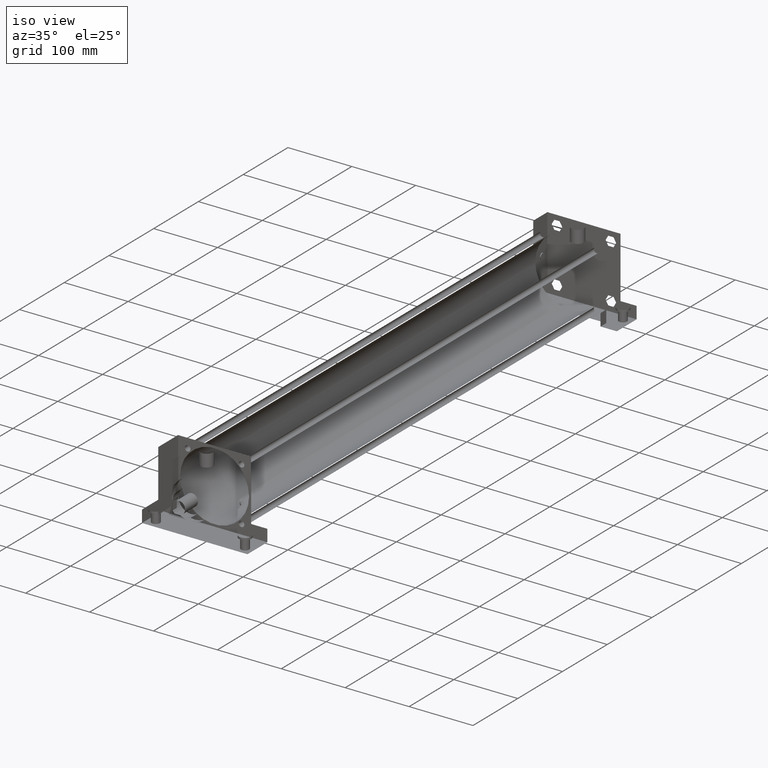
[diagram: clean part render]
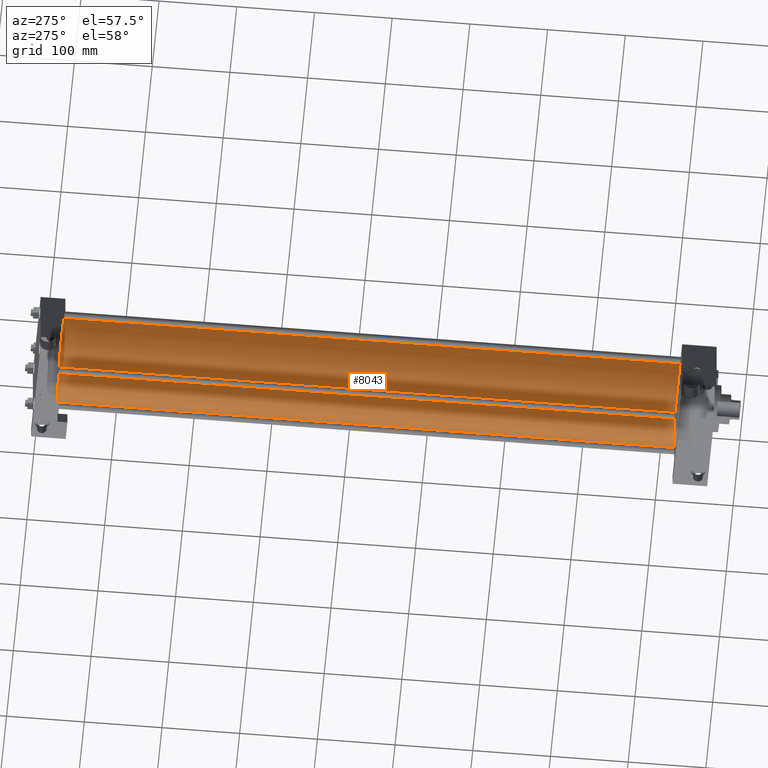
[diagram: tour spotlight — one face highlighted and labeled with its STEP entity id]
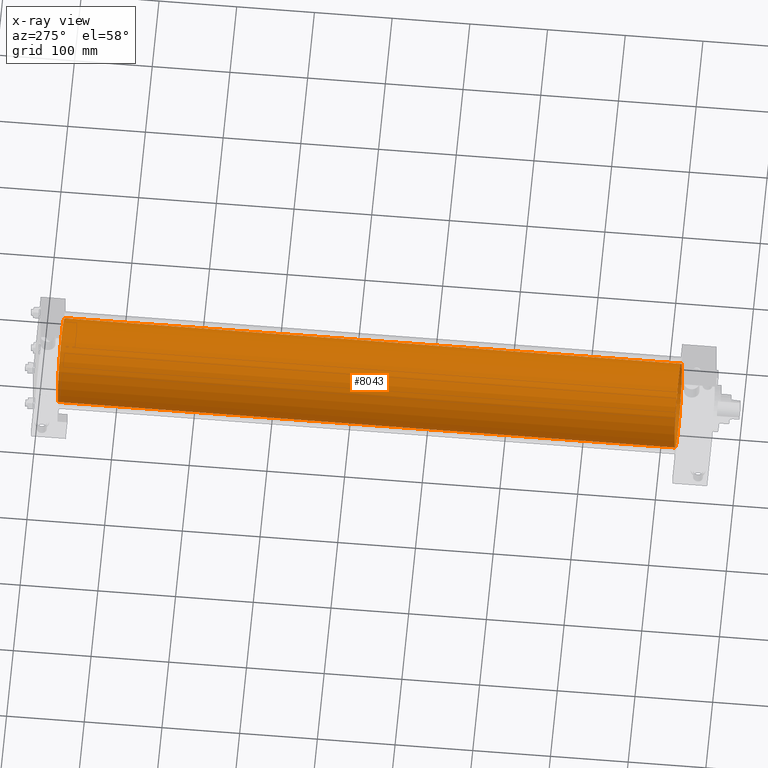
[diagram: x-ray of the same camera — body ghosted, this tour face saturated]
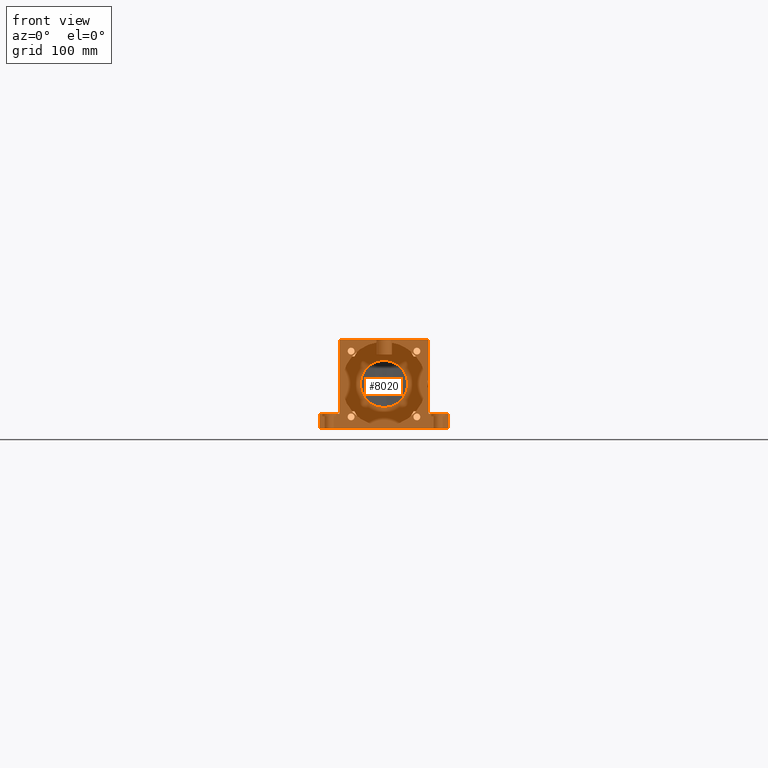
[diagram: tour spotlight — one face highlighted and labeled with its STEP entity id]
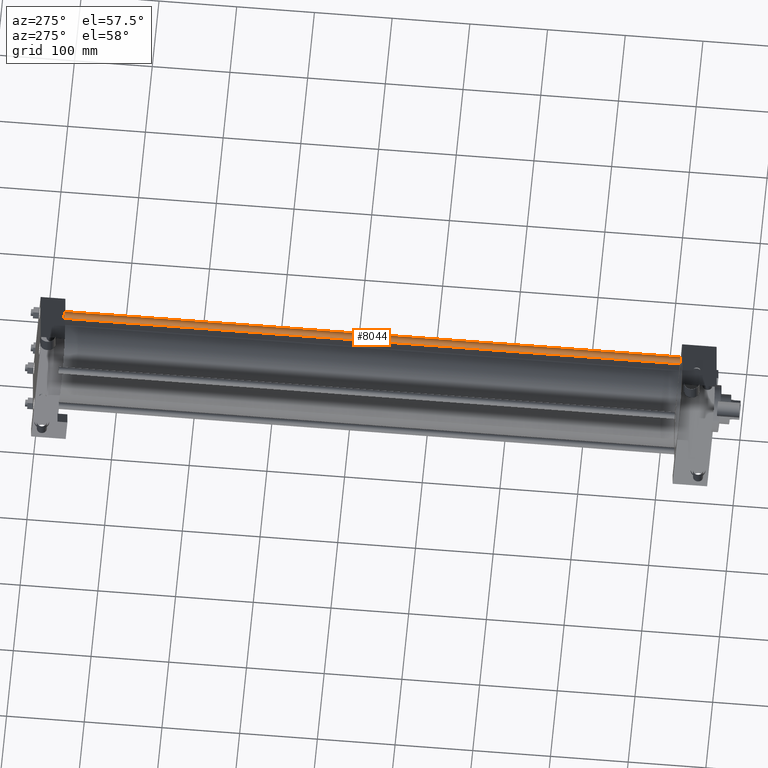
[diagram: tour spotlight — one face highlighted and labeled with its STEP entity id]
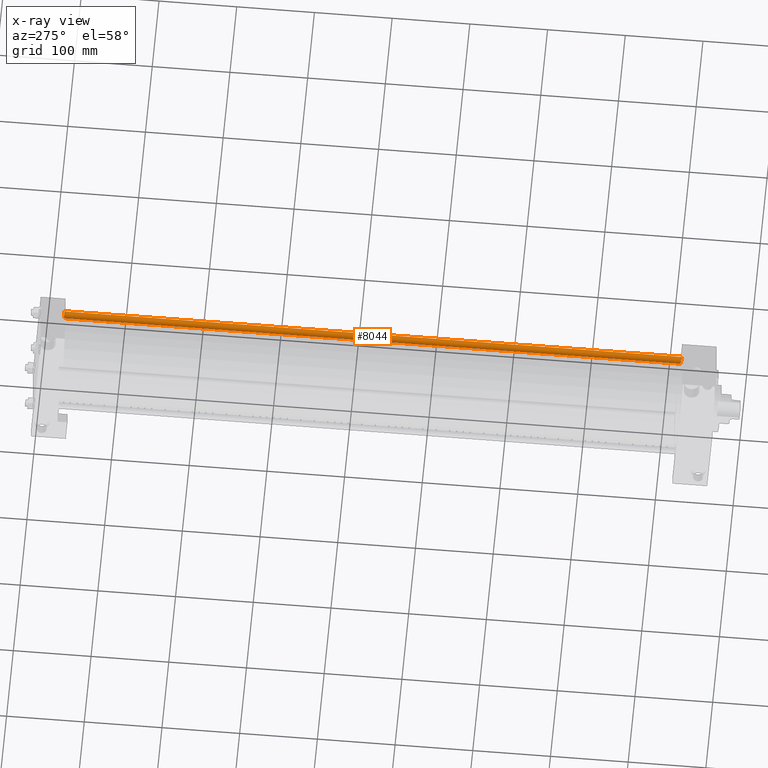
[diagram: x-ray of the same camera — body ghosted, this tour face saturated]
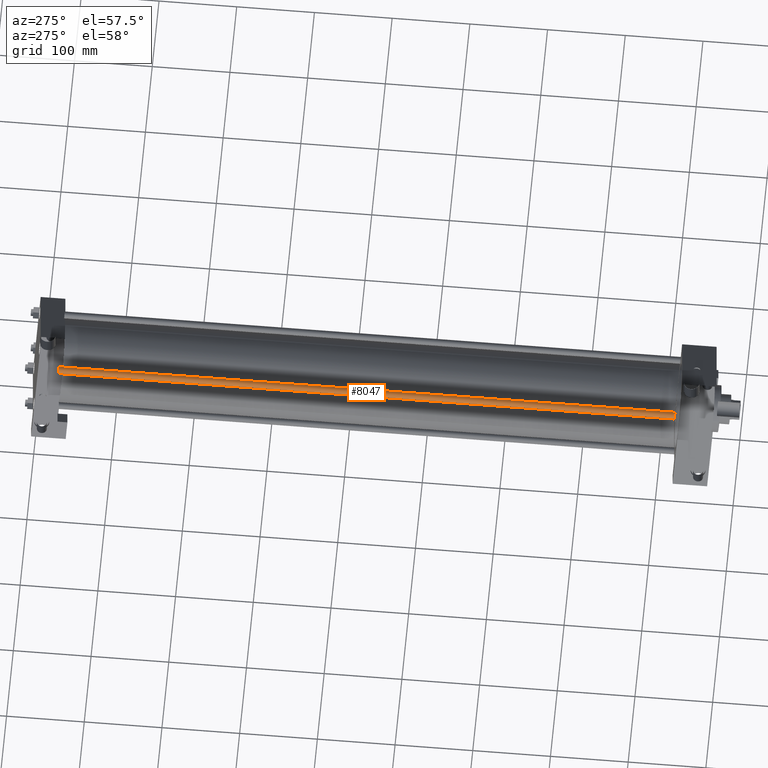
[diagram: tour spotlight — one face highlighted and labeled with its STEP entity id]
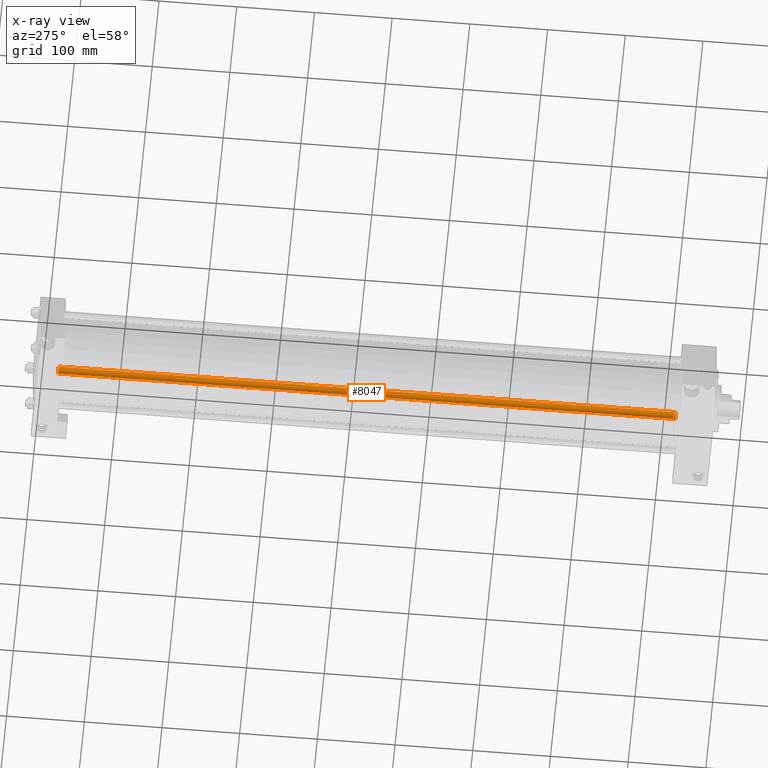
[diagram: x-ray of the same camera — body ghosted, this tour face saturated]
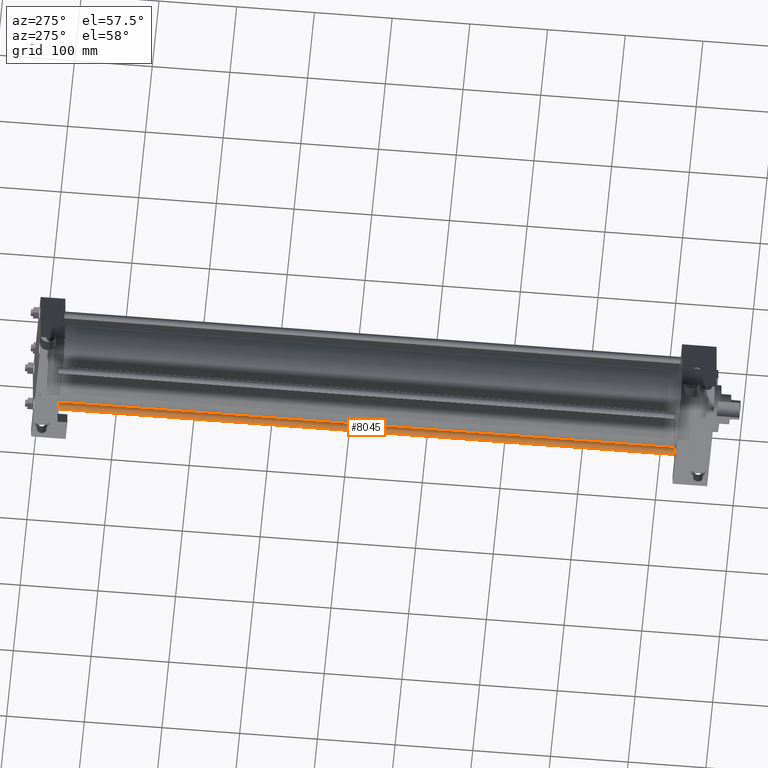
[diagram: tour spotlight — one face highlighted and labeled with its STEP entity id]
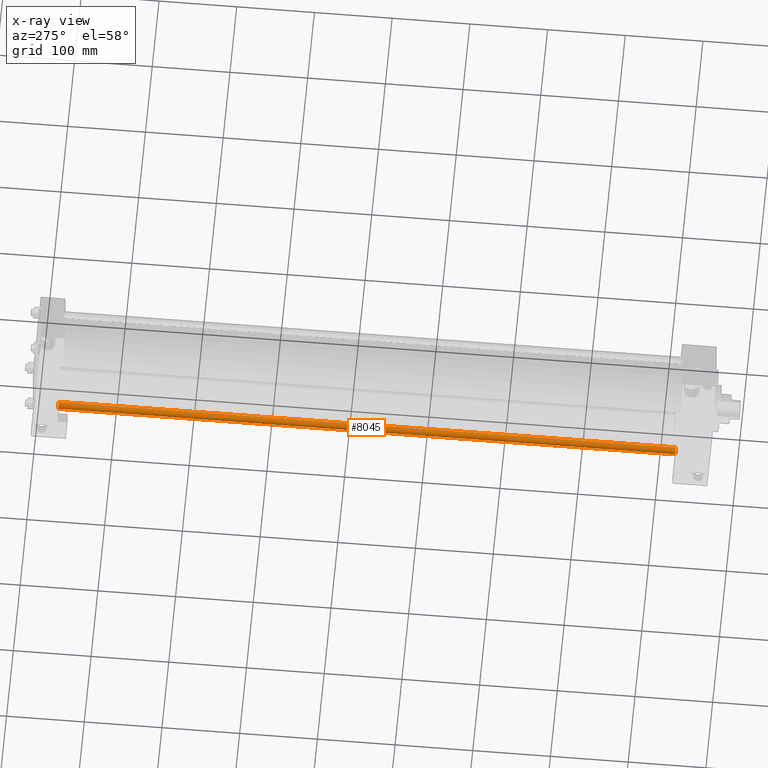
[diagram: x-ray of the same camera — body ghosted, this tour face saturated]
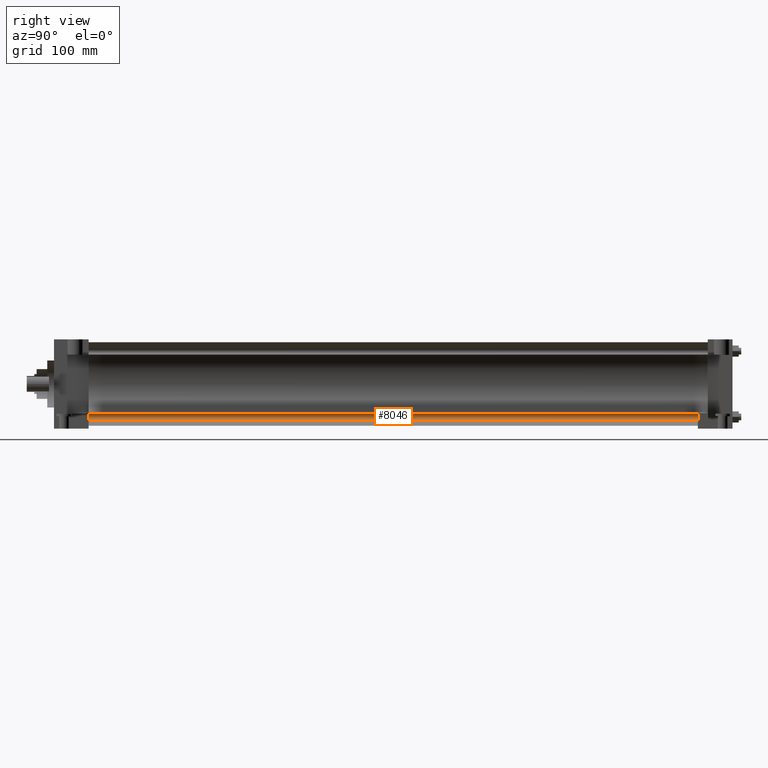
[diagram: tour spotlight — one face highlighted and labeled with its STEP entity id]
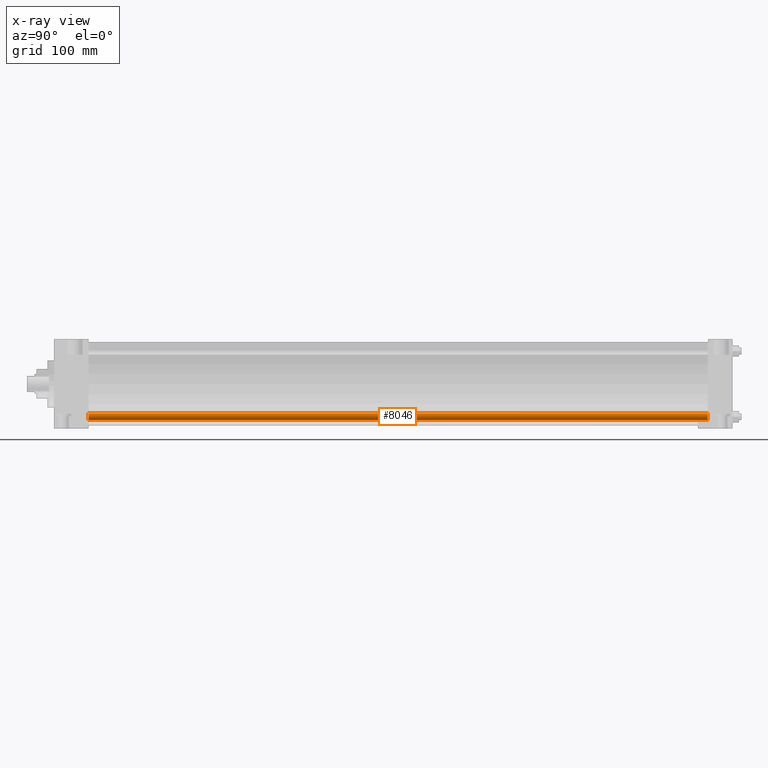
[diagram: x-ray of the same camera — body ghosted, this tour face saturated]
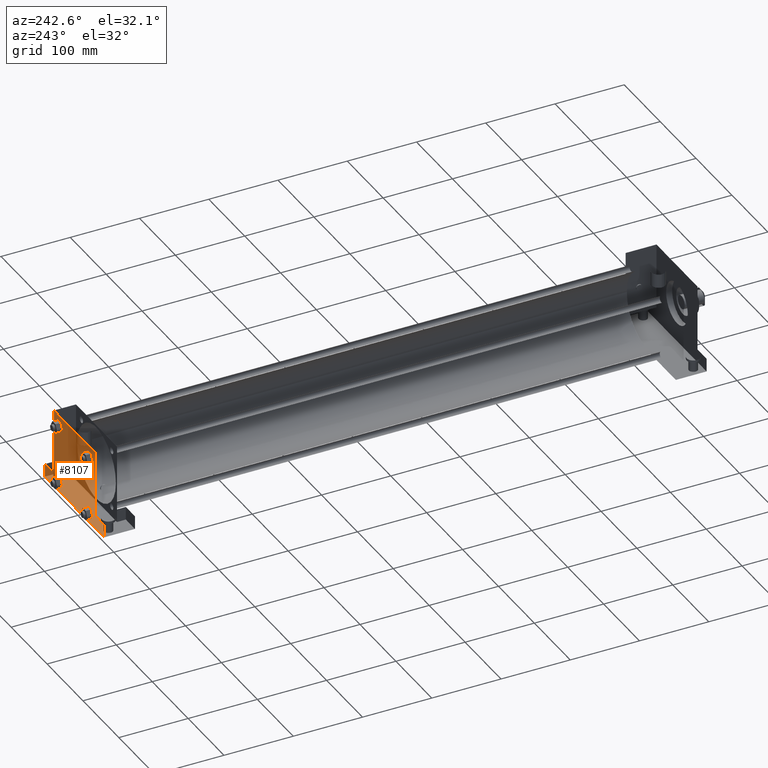
[diagram: tour spotlight — one face highlighted and labeled with its STEP entity id]
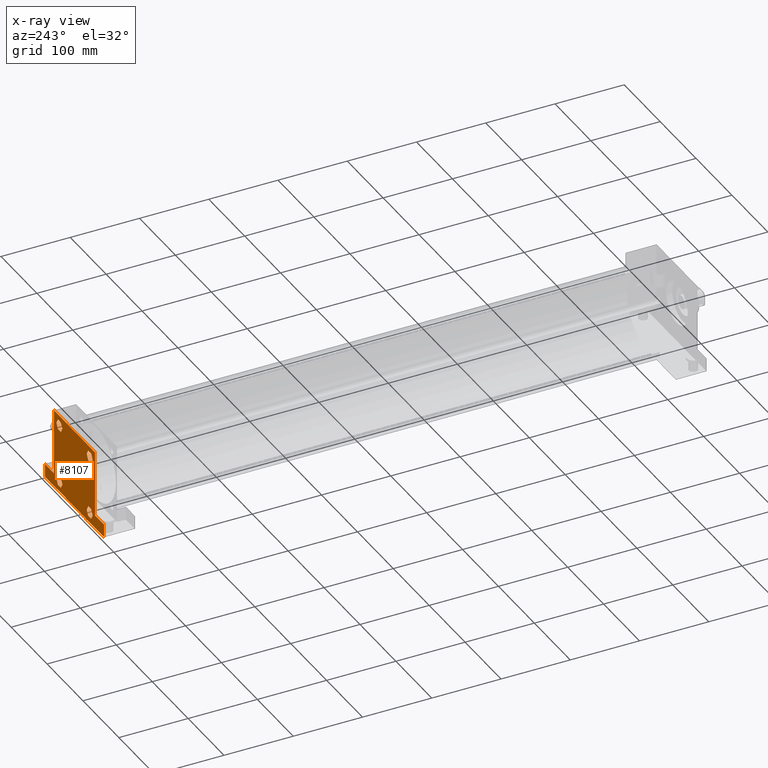
[diagram: x-ray of the same camera — body ghosted, this tour face saturated]
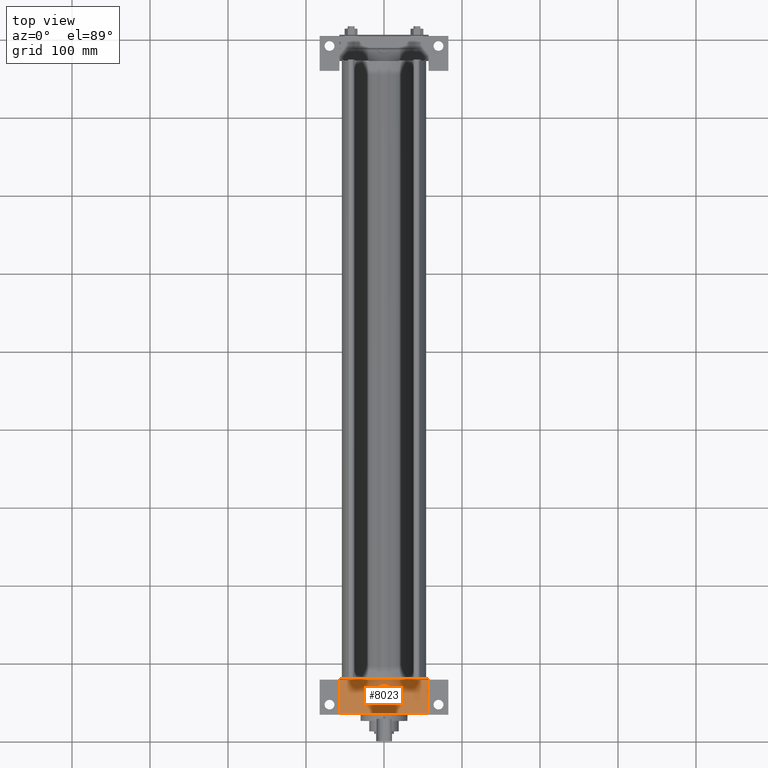
[diagram: tour spotlight — one face highlighted and labeled with its STEP entity id]
A machine part: a face-by-face anatomy tour. The part has 110 B-rep faces; the first image is the clean iso view, then the 8 largest visible faces are spotlighted one at a time (largest first), each with its STEP entity span.

Face 1 — auxiliary view, entity #8043. An x-ray twin of the same camera follows (body ghosted, this face saturated) — the face is partly hidden behind the body. In plain terms, the highlighted cylindrical surface (bore or boss wall) has radius 53.975 mm, axis along (0, -1, 0).
Definition (entity closure, byte-faithful):
#603=EDGE_CURVE('',#609,#609,#604,.T.);
#604=CIRCLE('',#605,5.397500000E+001);
#605=AXIS2_PLACEMENT_3D('',#606,#607,#608);
#606=CARTESIAN_POINT('',(0.000000000E+000,7.937500000E+001,0.000000000E+000));
#607=DIRECTION('',(0.0E+000,1.0E+000,0.0E+000));
#608=DIRECTION('',(1.0E+000,0.0E+000,0.0E+000));
#609=VERTEX_POINT('',#610);
#610=CARTESIAN_POINT('',(5.397500000E+001,7.937500000E+001,0.000000000E+000));
#1120=FACE_OUTER_BOUND('',#1122,.T.);
#1121=FACE_BOUND('',#1123,.T.);
#1122=EDGE_LOOP('',(#1124));
#1123=EDGE_LOOP('',(#1133));
#1124=ORIENTED_EDGE('',*,*,#1125,.F.);
#1125=EDGE_CURVE('',#1131,#1131,#1126,.T.);
#1126=CIRCLE('',#1127,5.397500000E+001);
#1127=AXIS2_PLACEMENT_3D('',#1128,#1129,#1130);
#1128=CARTESIAN_POINT('',(0.000000000E+000,8.731250000E+002,0.000000000E+000));
#1129=DIRECTION('',(0.0E+000,1.0E+000,0.0E+000));
#1130=DIRECTION('',(1.0E+000,0.0E+000,0.0E+000));
#1131=VERTEX_POINT('',#1132);
#1132=CARTESIAN_POINT('',(5.397500000E+001,8.731250000E+002,0.000000000E+000));
#1133=ORIENTED_EDGE('',*,*,#603,.T.);
#1134=CYLINDRICAL_SURFACE('',#1135,5.397500000E+001);
#1135=AXIS2_PLACEMENT_3D('',#1136,#1137,#1138);
#1136=CARTESIAN_POINT('',(0.000000000E+000,8.731250000E+002,0.000000000E+000));
#1137=DIRECTION('',(0.0E+000,-1.0E+000,0.0E+000));
#1138=DIRECTION('',(0.0E+000,0.0E+000,-1.0E+000));
#8043=ADVANCED_FACE('',(#1120,#1121),#1134,.T.);

Face 2 — front view, entity #8020. In plain terms, the highlighted planar face has unit normal (0, -1, 0).
Definition (entity closure, byte-faithful):
#451=EDGE_CURVE('',#457,#457,#452,.T.);
#452=CIRCLE('',#453,3.016250000E+001);
#453=AXIS2_PLACEMENT_3D('',#454,#455,#456);
#454=CARTESIAN_POINT('',(0.000000000E+000,3.492500000E+001,0.000000000E+000));
#455=DIRECTION('',(0.0E+000,1.0E+000,0.0E+000));
#456=DIRECTION('',(1.0E+000,0.0E+000,0.0E+000));
#457=VERTEX_POINT('',#458);
#458=CARTESIAN_POINT('',(3.016250000E+001,3.492500000E+001,0.000000000E+000));
#616=FACE_OUTER_BOUND('',#618,.T.);
#617=FACE_BOUND('',#619,.T.);
#618=EDGE_LOOP('',(#620,#621,#622,#623,#624,#625,#626,#627));
#619=EDGE_LOOP('',(#684));
#620=ORIENTED_EDGE('',*,*,#628,.F.);
#621=ORIENTED_EDGE('',*,*,#637,.F.);
#622=ORIENTED_EDGE('',*,*,#644,.F.);
#623=ORIENTED_EDGE('',*,*,#651,.T.);
#624=ORIENTED_EDGE('',*,*,#658,.T.);
#625=ORIENTED_EDGE('',*,*,#665,.T.);
#626=ORIENTED_EDGE('',*,*,#672,.T.);
#627=ORIENTED_EDGE('',*,*,#679,.T.);
#628=EDGE_CURVE('',#633,#634,#629,.T.);
#629=LINE('',#630,#631);
#630=CARTESIAN_POINT('',(8.255000000E+001,3.492500000E+001,-5.715000000E+001));
#631=VECTOR('',#632,1.0E+000);
#632=DIRECTION('',(-1.0E+000,0.0E+000,0.0E+000));
#633=VERTEX_POINT('',#635);
#634=VERTEX_POINT('',#636);
#635=CARTESIAN_POINT('',(8.255000000E+001,3.492500000E+001,-5.715000000E+001));
#636=CARTESIAN_POINT('',(-8.255000000E+001,3.492500000E+001,-5.715000000E+001));
#637=EDGE_CURVE('',#642,#633,#638,.T.);
#638=LINE('',#639,#640);
#639=CARTESIAN_POINT('',(8.255000000E+001,3.492500000E+001,-3.810000000E+001));
#640=VECTOR('',#641,1.0E+000);
#641=DIRECTION('',(0.0E+000,0.0E+000,-1.0E+000));
#642=VERTEX_POINT('',#643);
#643=CARTESIAN_POINT('',(8.255000000E+001,3.492500000E+001,-3.810000000E+001));
#644=EDGE_CURVE('',#649,#642,#645,.T.);
#645=LINE('',#646,#647);
#646=CARTESIAN_POINT('',(5.715000000E+001,3.492500000E+001,-3.810000000E+001));
#647=VECTOR('',#648,1.0E+000);
#648=DIRECTION('',(1.0E+000,0.0E+000,0.0E+000));
#649=VERTEX_POINT('',#650);
#650=CARTESIAN_POINT('',(5.715000000E+001,3.492500000E+001,-3.810000000E+001));
#651=EDGE_CURVE('',#649,#656,#652,.T.);
#652=LINE('',#653,#654);
#653=CARTESIAN_POINT('',(5.715000000E+001,3.492500000E+001,-5.715000000E+001));
#654=VECTOR('',#655,1.0E+000);
#655=DIRECTION('',(0.0E+000,0.0E+000,1.0E+000));
#656=VERTEX_POINT('',#657);
#657=CARTESIAN_POINT('',(5.715000000E+001,3.492500000E+001,5.715000000E+001));
#658=EDGE_CURVE('',#656,#663,#659,.T.);
#659=LINE('',#660,#661);
#660=CARTESIAN_POINT('',(5.715000000E+001,3.492500000E+001,5.715000000E+001));
#661=VECTOR('',#662,1.0E+000);
#662=DIRECTION('',(-1.0E+000,0.0E+000,0.0E+000));
#663=VERTEX_POINT('',#664);
#664=CARTESIAN_POINT('',(-5.715000000E+001,3.492500000E+001,5.715000000E+001));
#665=EDGE_CURVE('',#663,#670,#666,.T.);
#666=LINE('',#667,#668);
#667=CARTESIAN_POINT('',(-5.715000000E+001,3.492500000E+001,5.715000000E+001));
#668=VECTOR('',#669,1.0E+000);
#669=DIRECTION('',(0.0E+000,0.0E+000,-1.0E+000));
#670=VERTEX_POINT('',#671);
#671=CARTESIAN_POINT('',(-5.715000000E+001,3.492500000E+001,-3.810000000E+001));
#672=EDGE_CURVE('',#670,#677,#673,.T.);
#673=LINE('',#674,#675);
#674=CARTESIAN_POINT('',(-5.715000000E+001,3.492500000E+001,-3.810000000E+001));
#675=VECTOR('',#676,1.0E+000);
#676=DIRECTION('',(-1.0E+000,0.0E+000,0.0E+000));
#677=VERTEX_POINT('',#678);
#678=CARTESIAN_POINT('',(-8.255000000E+001,3.492500000E+001,-3.810000000E+001));
#679=EDGE_CURVE('',#677,#634,#680,.T.);
#680=LINE('',#681,#682);
#681=CARTESIAN_POINT('',(-8.255000000E+001,3.492500000E+001,-3.810000000E+001));
#682=VECTOR('',#683,1.0E+000);
#683=DIRECTION('',(0.0E+000,0.0E+000,-1.0E+000));
#684=ORIENTED_EDGE('',*,*,#451,.T.);
#693=PLANE('',#694);
#694=AXIS2_PLACEMENT_3D('',#695,#696,#697);
#695=CARTESIAN_POINT('',(5.715000000E+001,3.492500000E+001,-5.715000000E+001));
#696=DIRECTION('',(0.0E+000,-1.0E+000,0.0E+000));
#697=DIRECTION('',(0.0E+000,0.0E+000,-1.0E+000));
#8020=ADVANCED_FACE('',(#616,#617),#693,.T.);

Face 3 — auxiliary view, entity #8044. An x-ray twin of the same camera follows (body ghosted, this face saturated) — the face is partly hidden behind the body. In plain terms, the highlighted cylindrical surface (bore or boss wall) has radius 4.3815 mm, axis along (0, 1, 0).
Definition (entity closure, byte-faithful):
#503=EDGE_CURVE('',#509,#509,#504,.T.);
#504=CIRCLE('',#505,4.381500000E+000);
#505=AXIS2_PLACEMENT_3D('',#506,#507,#508);
#506=CARTESIAN_POINT('',(4.216400000E+001,7.937500000E+001,4.216400000E+001));
#507=DIRECTION('',(0.0E+000,1.0E+000,0.0E+000));
#508=DIRECTION('',(1.0E+000,0.0E+000,0.0E+000));
#509=VERTEX_POINT('',#510);
#510=CARTESIAN_POINT('',(3.778250000E+001,7.937500000E+001,4.216400000E+001));
#1155=FACE_OUTER_BOUND('',#1157,.T.);
#1156=FACE_BOUND('',#1158,.T.);
#1157=EDGE_LOOP('',(#1159));
#1158=EDGE_LOOP('',(#1160));
#1159=ORIENTED_EDGE('',*,*,#503,.T.);
#1160=ORIENTED_EDGE('',*,*,#1207,.T.);
#1161=CYLINDRICAL_SURFACE('',#1162,4.381500000E+000);
#1162=AXIS2_PLACEMENT_3D('',#1163,#1164,#1165);
#1163=CARTESIAN_POINT('',(4.216400000E+001,7.937500000E+001,4.216400000E+001));
#1164=DIRECTION('',(0.0E+000,1.0E+000,0.0E+000));
#1165=DIRECTION('',(0.0E+000,0.0E+000,-1.0E+000));
#1207=EDGE_CURVE('',#1213,#1213,#1208,.T.);
#1208=CIRCLE('',#1209,4.381500000E+000);
#1209=AXIS2_PLACEMENT_3D('',#1210,#1211,#1212);
#1210=CARTESIAN_POINT('',(4.216400000E+001,8.731250000E+002,4.216400000E+001));
#1211=DIRECTION('',(0.0E+000,-1.0E+000,0.0E+000));
#1212=DIRECTION('',(-1.0E+000,0.0E+000,0.0E+000));
#1213=VERTEX_POINT('',#1214);
#1214=CARTESIAN_POINT('',(3.778250000E+001,8.731250000E+002,4.216400000E+001));
#8044=ADVANCED_FACE('',(#1155,#1156),#1161,.T.);

Face 4 — auxiliary view, entity #8047. An x-ray twin of the same camera follows (body ghosted, this face saturated) — the face is partly hidden behind the body. In plain terms, the highlighted cylindrical surface (bore or boss wall) has radius 4.3815 mm, axis along (0, -1, 0).
Definition (entity closure, byte-faithful):
#585=EDGE_CURVE('',#591,#591,#586,.T.);
#586=CIRCLE('',#587,4.381500000E+000);
#587=AXIS2_PLACEMENT_3D('',#588,#589,#590);
#588=CARTESIAN_POINT('',(-4.216400000E+001,7.937500000E+001,4.216400000E+001));
#589=DIRECTION('',(0.0E+000,1.0E+000,0.0E+000));
#590=DIRECTION('',(1.0E+000,0.0E+000,0.0E+000));
#591=VERTEX_POINT('',#592);
#592=CARTESIAN_POINT('',(-3.778250000E+001,7.937500000E+001,4.216400000E+001));
#1188=FACE_OUTER_BOUND('',#1190,.T.);
#1189=FACE_BOUND('',#1191,.T.);
#1190=EDGE_LOOP('',(#1192));
#1191=EDGE_LOOP('',(#1193));
#1192=ORIENTED_EDGE('',*,*,#1247,.F.);
#1193=ORIENTED_EDGE('',*,*,#585,.T.);
#1194=CYLINDRICAL_SURFACE('',#1195,4.381500000E+000);
#1195=AXIS2_PLACEMENT_3D('',#1196,#1197,#1198);
#1196=CARTESIAN_POINT('',(-4.216400000E+001,8.731250000E+002,4.216400000E+001));
#1197=DIRECTION('',(0.0E+000,-1.0E+000,0.0E+000));
#1198=DIRECTION('',(0.0E+000,0.0E+000,-1.0E+000));
#1247=EDGE_CURVE('',#1253,#1253,#1248,.T.);
#1248=CIRCLE('',#1249,4.381500000E+000);
#1249=AXIS2_PLACEMENT_3D('',#1250,#1251,#1252);
#1250=CARTESIAN_POINT('',(-4.216400000E+001,8.731250000E+002,4.216400000E+001));
#1251=DIRECTION('',(0.0E+000,1.0E+000,0.0E+000));
#1252=DIRECTION('',(1.0E+000,0.0E+000,0.0E+000));
#1253=VERTEX_POINT('',#1254);
#1254=CARTESIAN_POINT('',(-3.778250000E+001,8.731250000E+002,4.216400000E+001));
#8047=ADVANCED_FACE('',(#1188,#1189),#1194,.T.);

Face 5 — auxiliary view, entity #8045. An x-ray twin of the same camera follows (body ghosted, this face saturated) — the face is partly hidden behind the body. In plain terms, the highlighted cylindrical surface (bore or boss wall) has radius 4.3815 mm, axis along (0, -1, 0).
Definition (entity closure, byte-faithful):
#512=EDGE_CURVE('',#518,#518,#513,.T.);
#513=CIRCLE('',#514,4.381500000E+000);
#514=AXIS2_PLACEMENT_3D('',#515,#516,#517);
#515=CARTESIAN_POINT('',(-4.216400000E+001,7.937500000E+001,-4.216400000E+001));
#516=DIRECTION('',(0.0E+000,1.0E+000,0.0E+000));
#517=DIRECTION('',(1.0E+000,0.0E+000,0.0E+000));
#518=VERTEX_POINT('',#519);
#519=CARTESIAN_POINT('',(-3.778250000E+001,7.937500000E+001,-4.216400000E+001));
#1166=FACE_OUTER_BOUND('',#1168,.T.);
#1167=FACE_BOUND('',#1169,.T.);
#1168=EDGE_LOOP('',(#1170));
#1169=EDGE_LOOP('',(#1171));
#1170=ORIENTED_EDGE('',*,*,#1215,.F.);
#1171=ORIENTED_EDGE('',*,*,#512,.T.);
#1172=CYLINDRICAL_SURFACE('',#1173,4.381500000E+000);
#1173=AXIS2_PLACEMENT_3D('',#1174,#1175,#1176);
#1174=CARTESIAN_POINT('',(-4.216400000E+001,8.731250000E+002,-4.216400000E+001));
#1175=DIRECTION('',(0.0E+000,-1.0E+000,0.0E+000));
#1176=DIRECTION('',(0.0E+000,0.0E+000,-1.0E+000));
#1215=EDGE_CURVE('',#1221,#1221,#1216,.T.);
#1216=CIRCLE('',#1217,4.381500000E+000);
#1217=AXIS2_PLACEMENT_3D('',#1218,#1219,#1220);
#1218=CARTESIAN_POINT('',(-4.216400000E+001,8.731250000E+002,-4.216400000E+001));
#1219=DIRECTION('',(0.0E+000,1.0E+000,0.0E+000));
#1220=DIRECTION('',(1.0E+000,0.0E+000,0.0E+000));
#1221=VERTEX_POINT('',#1222);
#1222=CARTESIAN_POINT('',(-3.778250000E+001,8.731250000E+002,-4.216400000E+001));
#8045=ADVANCED_FACE('',(#1166,#1167),#1172,.T.);

Face 6 — right view, entity #8046. An x-ray twin of the same camera follows (body ghosted, this face saturated) — the face is partly hidden behind the body. In plain terms, the highlighted cylindrical surface (bore or boss wall) has radius 4.3815 mm, axis along (0, -1, 0).
Definition (entity closure, byte-faithful):
#594=EDGE_CURVE('',#600,#600,#595,.T.);
#595=CIRCLE('',#596,4.381500000E+000);
#596=AXIS2_PLACEMENT_3D('',#597,#598,#599);
#597=CARTESIAN_POINT('',(4.216400000E+001,7.937500000E+001,-4.216400000E+001));
#598=DIRECTION('',(0.0E+000,1.0E+000,0.0E+000));
#599=DIRECTION('',(1.0E+000,0.0E+000,0.0E+000));
#600=VERTEX_POINT('',#601);
#601=CARTESIAN_POINT('',(4.654550000E+001,7.937500000E+001,-4.216400000E+001));
#1177=FACE_OUTER_BOUND('',#1179,.T.);
#1178=FACE_BOUND('',#1180,.T.);
#1179=EDGE_LOOP('',(#1181));
#1180=EDGE_LOOP('',(#1182));
#1181=ORIENTED_EDGE('',*,*,#1231,.F.);
#1182=ORIENTED_EDGE('',*,*,#594,.T.);
#1183=CYLINDRICAL_SURFACE('',#1184,4.381500000E+000);
#1184=AXIS2_PLACEMENT_3D('',#1185,#1186,#1187);
#1185=CARTESIAN_POINT('',(4.216400000E+001,8.731250000E+002,-4.216400000E+001));
#1186=DIRECTION('',(0.0E+000,-1.0E+000,0.0E+000));
#1187=DIRECTION('',(0.0E+000,0.0E+000,-1.0E+000));
#1231=EDGE_CURVE('',#1237,#1237,#1232,.T.);
#1232=CIRCLE('',#1233,4.381500000E+000);
#1233=AXIS2_PLACEMENT_3D('',#1234,#1235,#1236);
#1234=CARTESIAN_POINT('',(4.216400000E+001,8.731250000E+002,-4.216400000E+001));
#1235=DIRECTION('',(0.0E+000,1.0E+000,0.0E+000));
#1236=DIRECTION('',(1.0E+000,0.0E+000,0.0E+000));
#1237=VERTEX_POINT('',#1238);
#1238=CARTESIAN_POINT('',(4.654550000E+001,8.731250000E+002,-4.216400000E+001));
#8046=ADVANCED_FACE('',(#1177,#1178),#1183,.T.);

Face 7 — auxiliary view, entity #8107. An x-ray twin of the same camera follows (body ghosted, this face saturated) — the face is partly hidden behind the body. In plain terms, the highlighted planar face has unit normal (0, -1, 0).
Definition (entity closure, byte-faithful):
#2187=VERTEX_POINT('',#2188);
#2188=CARTESIAN_POINT('',(-3.803954875E+001,9.048750000E+002,-3.502025547E+001));
#2189=EDGE_CURVE('',#2194,#2187,#2190,.T.);
#2190=LINE('',#2191,#2192);
#2191=CARTESIAN_POINT('',(-3.391511014E+001,9.048750000E+002,-4.216400000E+001));
#2192=VECTOR('',#2193,1.0E+000);
#2193=DIRECTION('',(-5.01129111258307E-001,0.0E+000,
   8.65372528943148E-001));
#2194=VERTEX_POINT('',#2195);
#2195=CARTESIAN_POINT('',(-3.391511014E+001,9.048750000E+002,-4.216400000E+001));
#2219=EDGE_CURVE('',#2224,#2194,#2220,.T.);
#2220=LINE('',#2221,#2222);
#2221=CARTESIAN_POINT('',(-3.803954875E+001,9.048750000E+002,-4.930774453E+001));
#2222=VECTOR('',#2223,1.0E+000);
#2223=DIRECTION('',(5.01129111258308E-001,0.0E+000,8.65372528943147E-001));
#2224=VERTEX_POINT('',#2225);
#2225=CARTESIAN_POINT('',(-3.803954875E+001,9.048750000E+002,-4.930774453E+001));
#2249=EDGE_CURVE('',#2254,#2224,#2250,.T.);
#2250=LINE('',#2251,#2252);
#2251=CARTESIAN_POINT('',(-4.628845125E+001,9.048750000E+002,-4.930774453E+001));
#2252=VECTOR('',#2253,1.0E+000);
#2253=DIRECTION('',(1.0E+000,0.0E+000,0.0E+000));
#2254=VERTEX_POINT('',#2255);
#2255=CARTESIAN_POINT('',(-4.628845125E+001,9.048750000E+002,-4.930774453E+001));
#2279=EDGE_CURVE('',#2284,#2254,#2280,.T.);
#2280=LINE('',#2281,#2282);
#2281=CARTESIAN_POINT('',(-5.041288986E+001,9.048750000E+002,-4.216400000E+001));
#2282=VECTOR('',#2283,1.0E+000);
#2283=DIRECTION('',(5.01129111258307E-001,0.0E+000,
   -8.65372528943148E-001));
#2284=VERTEX_POINT('',#2285);
#2285=CARTESIAN_POINT('',(-5.041288986E+001,9.048750000E+002,-4.216400000E+001));
#2309=EDGE_CURVE('',#2314,#2284,#2310,.T.);
#2310=LINE('',#2311,#2312);
#2311=CARTESIAN_POINT('',(-4.628845125E+001,9.048750000E+002,-3.502025547E+001));
#2312=VECTOR('',#2313,1.0E+000);
#2313=DIRECTION('',(-5.01129111258308E-001,0.0E+000,
   -8.65372528943147E-001));
#2314=VERTEX_POINT('',#2315);
#2315=CARTESIAN_POINT('',(-4.628845125E+001,9.048750000E+002,-3.502025547E+001));
#2337=EDGE_CURVE('',#2187,#2314,#2338,.T.);
#2338=LINE('',#2339,#2340);
#2339=CARTESIAN_POINT('',(-3.803954875E+001,9.048750000E+002,-3.502025547E+001));
#2340=VECTOR('',#2341,1.0E+000);
#2341=DIRECTION('',(-1.0E+000,0.0E+000,0.0E+000));
#2418=VERTEX_POINT('',#2419);
#2419=CARTESIAN_POINT('',(-4.628845125E+001,9.048750000E+002,3.502025547E+001));
#2420=EDGE_CURVE('',#2425,#2418,#2421,.T.);
#2421=LINE('',#2422,#2423);
#2422=CARTESIAN_POINT('',(-5.041288986E+001,9.048750000E+002,4.216400000E+001));
#2423=VECTOR('',#2424,1.0E+000);
#2424=DIRECTION('',(5.01129111258307E-001,0.0E+000,
   -8.65372528943148E-001));
#2425=VERTEX_POINT('',#2426);
#2426=CARTESIAN_POINT('',(-5.041288986E+001,9.048750000E+002,4.216400000E+001));
#2450=EDGE_CURVE('',#2455,#2425,#2451,.T.);
#2451=LINE('',#2452,#2453);
#2452=CARTESIAN_POINT('',(-4.628845125E+001,9.048750000E+002,4.930774453E+001));
#2453=VECTOR('',#2454,1.0E+000);
#2454=DIRECTION('',(-5.01129111258308E-001,0.0E+000,
   -8.65372528943147E-001));
#2455=VERTEX_POINT('',#2456);
#2456=CARTESIAN_POINT('',(-4.628845125E+001,9.048750000E+002,4.930774453E+001));
#2480=EDGE_CURVE('',#2485,#2455,#2481,.T.);
#2481=LINE('',#2482,#2483);
#2482=CARTESIAN_POINT('',(-3.803954875E+001,9.048750000E+002,4.930774453E+001));
#2483=VECTOR('',#2484,1.0E+000);
#2484=DIRECTION('',(-1.0E+000,0.0E+000,0.0E+000));
#2485=VERTEX_POINT('',#2486);
#2486=CARTESIAN_POINT('',(-3.803954875E+001,9.048750000E+002,4.930774453E+001));
#2510=EDGE_CURVE('',#2515,#2485,#2511,.T.);
#2511=LINE('',#2512,#2513);
#2512=CARTESIAN_POINT('',(-3.391511014E+001,9.048750000E+002,4.216400000E+001));
#2513=VECTOR('',#2514,1.0E+000);
#2514=DIRECTION('',(-5.01129111258307E-001,0.0E+000,
   8.65372528943148E-001));
#2515=VERTEX_POINT('',#2516);
#2516=CARTESIAN_POINT('',(-3.391511014E+001,9.048750000E+002,4.216400000E+001));
#2540=EDGE_CURVE('',#2545,#2515,#2541,.T.);
#2541=LINE('',#2542,#2543);
#2542=CARTESIAN_POINT('',(-3.803954875E+001,9.048750000E+002,3.502025547E+001));
#2543=VECTOR('',#2544,1.0E+000);
#2544=DIRECTION('',(5.01129111258308E-001,0.0E+000,8.65372528943147E-001));
#2545=VERTEX_POINT('',#2546);
#2546=CARTESIAN_POINT('',(-3.803954875E+001,9.048750000E+002,3.502025547E+001));
#2568=EDGE_CURVE('',#2418,#2545,#2569,.T.);
#2569=LINE('',#2570,#2571);
#2570=CARTESIAN_POINT('',(-4.628845125E+001,9.048750000E+002,3.502025547E+001));
#2571=VECTOR('',#2572,1.0E+000);
#2572=DIRECTION('',(1.0E+000,0.0E+000,0.0E+000));
#2649=VERTEX_POINT('',#2650);
#2650=CARTESIAN_POINT('',(3.803954875E+001,9.048750000E+002,3.502025547E+001));
#2651=EDGE_CURVE('',#2656,#2649,#2652,.T.);
#2652=LINE('',#2653,#2654);
#2653=CARTESIAN_POINT('',(3.391511014E+001,9.048750000E+002,4.216400000E+001));
#2654=VECTOR('',#2655,1.0E+000);
#2655=DIRECTION('',(5.01129111258307E-001,0.0E+000,
   -8.65372528943148E-001));
#2656=VERTEX_POINT('',#2657);
#2657=CARTESIAN_POINT('',(3.391511014E+001,9.048750000E+002,4.216400000E+001));
#2681=EDGE_CURVE('',#2686,#2656,#2682,.T.);
#2682=LINE('',#2683,#2684);
#2683=CARTESIAN_POINT('',(3.803954875E+001,9.048750000E+002,4.930774453E+001));
#2684=VECTOR('',#2685,1.0E+000);
#2685=DIRECTION('',(-5.01129111258308E-001,0.0E+000,
   -8.65372528943147E-001));
#2686=VERTEX_POINT('',#2687);
#2687=CARTESIAN_POINT('',(3.803954875E+001,9.048750000E+002,4.930774453E+001));
#2711=EDGE_CURVE('',#2716,#2686,#2712,.T.);
#2712=LINE('',#2713,#2714);
#2713=CARTESIAN_POINT('',(4.628845125E+001,9.048750000E+002,4.930774453E+001));
#2714=VECTOR('',#2715,1.0E+000);
#2715=DIRECTION('',(-1.0E+000,0.0E+000,0.0E+000));
#2716=VERTEX_POINT('',#2717);
#2717=CARTESIAN_POINT('',(4.628845125E+001,9.048750000E+002,4.930774453E+001));
#2741=EDGE_CURVE('',#2746,#2716,#2742,.T.);
#2742=LINE('',#2743,#2744);
#2743=CARTESIAN_POINT('',(5.041288986E+001,9.048750000E+002,4.216400000E+001));
#2744=VECTOR('',#2745,1.0E+000);
#2745=DIRECTION('',(-5.01129111258307E-001,0.0E+000,
   8.65372528943148E-001));
#2746=VERTEX_POINT('',#2747);
#2747=CARTESIAN_POINT('',(5.041288986E+001,9.048750000E+002,4.216400000E+001));
#2771=EDGE_CURVE('',#2776,#2746,#2772,.T.);
#2772=LINE('',#2773,#2774);
#2773=CARTESIAN_POINT('',(4.628845125E+001,9.048750000E+002,3.502025547E+001));
#2774=VECTOR('',#2775,1.0E+000);
#2775=DIRECTION('',(5.01129111258308E-001,0.0E+000,8.65372528943147E-001));
#2776=VERTEX_POINT('',#2777);
#2777=CARTESIAN_POINT('',(4.628845125E+001,9.048750000E+002,3.502025547E+001));
#2799=EDGE_CURVE('',#2649,#2776,#2800,.T.);
#2800=LINE('',#2801,#2802);
#2801=CARTESIAN_POINT('',(3.803954875E+001,9.048750000E+002,3.502025547E+001));
#2802=VECTOR('',#2803,1.0E+000);
#2803=DIRECTION('',(1.0E+000,0.0E+000,0.0E+000));
#2880=VERTEX_POINT('',#2881);
#2881=CARTESIAN_POINT('',(4.628845125E+001,9.048750000E+002,-3.502025547E+001));
#2882=EDGE_CURVE('',#2887,#2880,#2883,.T.);
#2883=LINE('',#2884,#2885);
#2884=CARTESIAN_POINT('',(5.041288986E+001,9.048750000E+002,-4.216400000E+001));
#2885=VECTOR('',#2886,1.0E+000);
#2886=DIRECTION('',(-5.01129111258307E-001,0.0E+000,
   8.65372528943148E-001));
#2887=VERTEX_POINT('',#2888);
#2888=CARTESIAN_POINT('',(5.041288986E+001,9.048750000E+002,-4.216400000E+001));
#2912=EDGE_CURVE('',#2917,#2887,#2913,.T.);
#2913=LINE('',#2914,#2915);
#2914=CARTESIAN_POINT('',(4.628845125E+001,9.048750000E+002,-4.930774453E+001));
#2915=VECTOR('',#2916,1.0E+000);
#2916=DIRECTION('',(5.01129111258308E-001,0.0E+000,8.65372528943147E-001));
#2917=VERTEX_POINT('',#2918);
#2918=CARTESIAN_POINT('',(4.628845125E+001,9.048750000E+002,-4.930774453E+001));
#2942=EDGE_CURVE('',#2947,#2917,#2943,.T.);
#2943=LINE('',#2944,#2945);
#2944=CARTESIAN_POINT('',(3.803954875E+001,9.048750000E+002,-4.930774453E+001));
#2945=VECTOR('',#2946,1.0E+000);
#2946=DIRECTION('',(1.0E+000,0.0E+000,0.0E+000));
#2947=VERTEX_POINT('',#2948);
#2948=CARTESIAN_POINT('',(3.803954875E+001,9.048750000E+002,-4.930774453E+001));
#2972=EDGE_CURVE('',#2977,#2947,#2973,.T.);
#2973=LINE('',#2974,#2975);
#2974=CARTESIAN_POINT('',(3.391511014E+001,9.048750000E+002,-4.216400000E+001));
#2975=VECTOR('',#2976,1.0E+000);
#2976=DIRECTION('',(5.01129111258307E-001,0.0E+000,
   -8.65372528943148E-001));
#2977=VERTEX_POINT('',#2978);
#2978=CARTESIAN_POINT('',(3.391511014E+001,9.048750000E+002,-4.216400000E+001));
#3002=EDGE_CURVE('',#3007,#2977,#3003,.T.);
#3003=LINE('',#3004,#3005);
#3004=CARTESIAN_POINT('',(3.803954875E+001,9.048750000E+002,-3.502025547E+001));
#3005=VECTOR('',#3006,1.0E+000);
#3006=DIRECTION('',(-5.01129111258308E-001,0.0E+000,
   -8.65372528943147E-001));
#3007=VERTEX_POINT('',#3008);
#3008=CARTESIAN_POINT('',(3.803954875E+001,9.048750000E+002,-3.502025547E+001));
#3030=EDGE_CURVE('',#2880,#3007,#3031,.T.);
#3031=LINE('',#3032,#3033);
#3032=CARTESIAN_POINT('',(4.628845125E+001,9.048750000E+002,-3.502025547E+001));
#3033=VECTOR('',#3034,1.0E+000);
#3034=DIRECTION('',(-1.0E+000,0.0E+000,0.0E+000));
#3474=VERTEX_POINT('',#3475);
#3475=CARTESIAN_POINT('',(-8.255000000E+001,9.048750000E+002,-5.715000000E+001));
#3476=EDGE_CURVE('',#3481,#3474,#3477,.T.);
#3477=LINE('',#3478,#3479);
#3478=CARTESIAN_POINT('',(5.715000000E+001,9.048750000E+002,-5.715000000E+001));
#3479=VECTOR('',#3480,1.0E+000);
#3480=DIRECTION('',(-1.0E+000,0.0E+000,0.0E+000));
#3481=VERTEX_POINT('',#3482);
#3482=CARTESIAN_POINT('',(8.255000000E+001,9.048750000E+002,-5.715000000E+001));
#3525=VERTEX_POINT('',#3527);
#3527=CARTESIAN_POINT('',(5.715000000E+001,9.048750000E+002,-3.810000000E+001));
#3544=VERTEX_POINT('',#3545);
#3545=CARTESIAN_POINT('',(8.255000000E+001,9.048750000E+002,-3.810000000E+001));
#3546=EDGE_CURVE('',#3544,#3525,#3547,.T.);
#3547=LINE('',#3548,#3549);
#3548=CARTESIAN_POINT('',(8.255000000E+001,9.048750000E+002,-3.810000000E+001));
#3549=VECTOR('',#3550,1.0E+000);
#3550=DIRECTION('',(-1.0E+000,0.0E+000,0.0E+000));
#3567=EDGE_CURVE('',#3544,#3481,#3568,.T.);
#3568=LINE('',#3569,#3570);
#3569=CARTESIAN_POINT('',(8.255000000E+001,9.048750000E+002,-3.810000000E+001));
#3570=VECTOR('',#3571,1.0E+000);
#3571=DIRECTION('',(0.0E+000,0.0E+000,-1.0E+000));
#3624=VERTEX_POINT('',#3626);
#3626=CARTESIAN_POINT('',(-5.715000000E+001,9.048750000E+002,-3.810000000E+001));
#3628=EDGE_CURVE('',#3633,#3624,#3629,.T.);
#3629=LINE('',#3630,#3631);
#3630=CARTESIAN_POINT('',(-8.255000000E+001,9.048750000E+002,-3.810000000E+001));
#3631=VECTOR('',#3632,1.0E+000);
#3632=DIRECTION('',(1.0E+000,0.0E+000,0.0E+000));
#3633=VERTEX_POINT('',#3634);
#3634=CARTESIAN_POINT('',(-8.255000000E+001,9.048750000E+002,-3.810000000E+001));
#3666=EDGE_CURVE('',#3633,#3474,#3667,.T.);
#3667=LINE('',#3668,#3669);
#3668=CARTESIAN_POINT('',(-8.255000000E+001,9.048750000E+002,-3.810000000E+001));
#3669=VECTOR('',#3670,1.0E+000);
#3670=DIRECTION('',(0.0E+000,0.0E+000,-1.0E+000));
#3708=FACE_OUTER_BOUND('',#3713,.T.);
#3709=FACE_BOUND('',#3714,.T.);
#3710=FACE_BOUND('',#3715,.T.);
#3711=FACE_BOUND('',#3716,.T.);
#3712=FACE_BOUND('',#3717,.T.);
#3713=EDGE_LOOP('',(#3718,#3719,#3720,#3721,#3722,#3723));
#3714=EDGE_LOOP('',(#3724,#3725,#3726,#3727,#3728,#3729));
#3715=EDGE_LOOP('',(#3730,#3731,#3732,#3733,#3734,#3735));
#3716=EDGE_LOOP('',(#3736,#3737,#3738,#3739,#3740,#3741));
#3717=EDGE_LOOP('',(#3742,#3743,#3744,#3745,#3746,#3747,#3748,#3749));
#3718=ORIENTED_EDGE('',*,*,#2189,.T.);
#3719=ORIENTED_EDGE('',*,*,#2337,.T.);
#3720=ORIENTED_EDGE('',*,*,#2309,.T.);
#3721=ORIENTED_EDGE('',*,*,#2279,.T.);
#3722=ORIENTED_EDGE('',*,*,#2249,.T.);
#3723=ORIENTED_EDGE('',*,*,#2219,.T.);
#3724=ORIENTED_EDGE('',*,*,#2420,.T.);
#3725=ORIENTED_EDGE('',*,*,#2568,.T.);
#3726=ORIENTED_EDGE('',*,*,#2540,.T.);
#3727=ORIENTED_EDGE('',*,*,#2510,.T.);
#3728=ORIENTED_EDGE('',*,*,#2480,.T.);
#3729=ORIENTED_EDGE('',*,*,#2450,.T.);
#3730=ORIENTED_EDGE('',*,*,#2651,.T.);
#3731=ORIENTED_EDGE('',*,*,#2799,.T.);
#3732=ORIENTED_EDGE('',*,*,#2771,.T.);
#3733=ORIENTED_EDGE('',*,*,#2741,.T.);
#3734=ORIENTED_EDGE('',*,*,#2711,.T.);
#3735=ORIENTED_EDGE('',*,*,#2681,.T.);
#3736=ORIENTED_EDGE('',*,*,#2882,.T.);
#3737=ORIENTED_EDGE('',*,*,#3030,.T.);
#3738=ORIENTED_EDGE('',*,*,#3002,.T.);
#3739=ORIENTED_EDGE('',*,*,#2972,.T.);
#3740=ORIENTED_EDGE('',*,*,#2942,.T.);
#3741=ORIENTED_EDGE('',*,*,#2912,.T.);
#3742=ORIENTED_EDGE('',*,*,#3567,.T.);
#3743=ORIENTED_EDGE('',*,*,#3476,.T.);
#3744=ORIENTED_EDGE('',*,*,#3666,.F.);
#3745=ORIENTED_EDGE('',*,*,#3628,.T.);
#3746=ORIENTED_EDGE('',*,*,#3750,.F.);
#3747=ORIENTED_EDGE('',*,*,#3757,.F.);
#3748=ORIENTED_EDGE('',*,*,#3764,.F.);
#3749=ORIENTED_EDGE('',*,*,#3546,.F.);
#3750=EDGE_CURVE('',#3755,#3624,#3751,.T.);
#3751=LINE('',#3752,#3753);
#3752=CARTESIAN_POINT('',(-5.715000000E+001,9.048750000E+002,5.715000000E+001));
#3753=VECTOR('',#3754,1.0E+000);
#3754=DIRECTION('',(0.0E+000,0.0E+000,-1.0E+000));
#3755=VERTEX_POINT('',#3756);
#3756=CARTESIAN_POINT('',(-5.715000000E+001,9.048750000E+002,5.715000000E+001));
#3757=EDGE_CURVE('',#3762,#3755,#3758,.T.);
#3758=LINE('',#3759,#3760);
#3759=CARTESIAN_POINT('',(5.715000000E+001,9.048750000E+002,5.715000000E+001));
#3760=VECTOR('',#3761,1.0E+000);
#3761=DIRECTION('',(-1.0E+000,0.0E+000,0.0E+000));
#3762=VERTEX_POINT('',#3763);
#3763=CARTESIAN_POINT('',(5.715000000E+001,9.048750000E+002,5.715000000E+001));
#3764=EDGE_CURVE('',#3525,#3762,#3765,.T.);
#3765=LINE('',#3766,#3767);
#3766=CARTESIAN_POINT('',(5.715000000E+001,9.048750000E+002,-5.715000000E+001));
#3767=VECTOR('',#3768,1.0E+000);
#3768=DIRECTION('',(0.0E+000,0.0E+000,1.0E+000));
#3769=PLANE('',#3770);
#3770=AXIS2_PLACEMENT_3D('',#3771,#3772,#3773);
#3771=CARTESIAN_POINT('',(5.715000000E+001,9.048750000E+002,-5.715000000E+001));
#3772=DIRECTION('',(0.0E+000,-1.0E+000,0.0E+000));
#3773=DIRECTION('',(0.0E+000,0.0E+000,-1.0E+000));
#8107=ADVANCED_FACE('',(#3708,#3709,#3710,#3711,#3712),#3769,.F.);

Face 8 — top view, entity #8023. In plain terms, the highlighted planar face has unit normal (0, 0, 1).
Definition (entity closure, byte-faithful):
#563=VERTEX_POINT('',#564);
#564=CARTESIAN_POINT('',(-5.715000000E+001,7.937500000E+001,5.715000000E+001));
#565=EDGE_CURVE('',#570,#563,#566,.T.);
#566=LINE('',#567,#568);
#567=CARTESIAN_POINT('',(5.715000000E+001,7.937500000E+001,5.715000000E+001));
#568=VECTOR('',#569,1.0E+000);
#569=DIRECTION('',(-1.0E+000,0.0E+000,0.0E+000));
#570=VERTEX_POINT('',#571);
#571=CARTESIAN_POINT('',(5.715000000E+001,7.937500000E+001,5.715000000E+001));
#656=VERTEX_POINT('',#657);
#657=CARTESIAN_POINT('',(5.715000000E+001,3.492500000E+001,5.715000000E+001));
#658=EDGE_CURVE('',#656,#663,#659,.T.);
#659=LINE('',#660,#661);
#660=CARTESIAN_POINT('',(5.715000000E+001,3.492500000E+001,5.715000000E+001));
#661=VECTOR('',#662,1.0E+000);
#662=DIRECTION('',(-1.0E+000,0.0E+000,0.0E+000));
#663=VERTEX_POINT('',#664);
#664=CARTESIAN_POINT('',(-5.715000000E+001,3.492500000E+001,5.715000000E+001));
#720=EDGE_CURVE('',#563,#663,#721,.T.);
#721=LINE('',#722,#723);
#722=CARTESIAN_POINT('',(-5.715000000E+001,7.937500000E+001,5.715000000E+001));
#723=VECTOR('',#724,1.0E+000);
#724=DIRECTION('',(0.0E+000,-1.0E+000,0.0E+000));
#752=EDGE_CURVE('',#570,#656,#753,.T.);
#753=LINE('',#754,#755);
#754=CARTESIAN_POINT('',(5.715000000E+001,7.937500000E+001,5.715000000E+001));
#755=VECTOR('',#756,1.0E+000);
#756=DIRECTION('',(0.0E+000,-1.0E+000,0.0E+000));
#762=FACE_OUTER_BOUND('',#764,.T.);
#763=FACE_BOUND('',#765,.T.);
#764=EDGE_LOOP('',(#766));
#765=EDGE_LOOP('',(#775,#776,#777,#778));
#766=ORIENTED_EDGE('',*,*,#767,.T.);
#767=EDGE_CURVE('',#773,#773,#768,.T.);
#768=CIRCLE('',#769,9.921875000E+000);
#769=AXIS2_PLACEMENT_3D('',#770,#771,#772);
#770=CARTESIAN_POINT('',(0.000000000E+000,6.191250000E+001,5.715000000E+001));
#771=DIRECTION('',(0.0E+000,0.0E+000,-1.0E+000));
#772=DIRECTION('',(-1.0E+000,0.0E+000,0.0E+000));
#773=VERTEX_POINT('',#774);
#774=CARTESIAN_POINT('',(-9.921875000E+000,6.191250000E+001,5.715000000E+001));
#775=ORIENTED_EDGE('',*,*,#720,.T.);
#776=ORIENTED_EDGE('',*,*,#658,.F.);
#777=ORIENTED_EDGE('',*,*,#752,.F.);
#778=ORIENTED_EDGE('',*,*,#565,.T.);
#779=PLANE('',#780);
#780=AXIS2_PLACEMENT_3D('',#781,#782,#783);
#781=CARTESIAN_POINT('',(5.715000000E+001,7.937500000E+001,5.715000000E+001));
#782=DIRECTION('',(0.0E+000,0.0E+000,1.0E+000));
#783=DIRECTION('',(1.0E+000,0.0E+000,0.0E+000));
#8023=ADVANCED_FACE('',(#762,#763),#779,.T.);